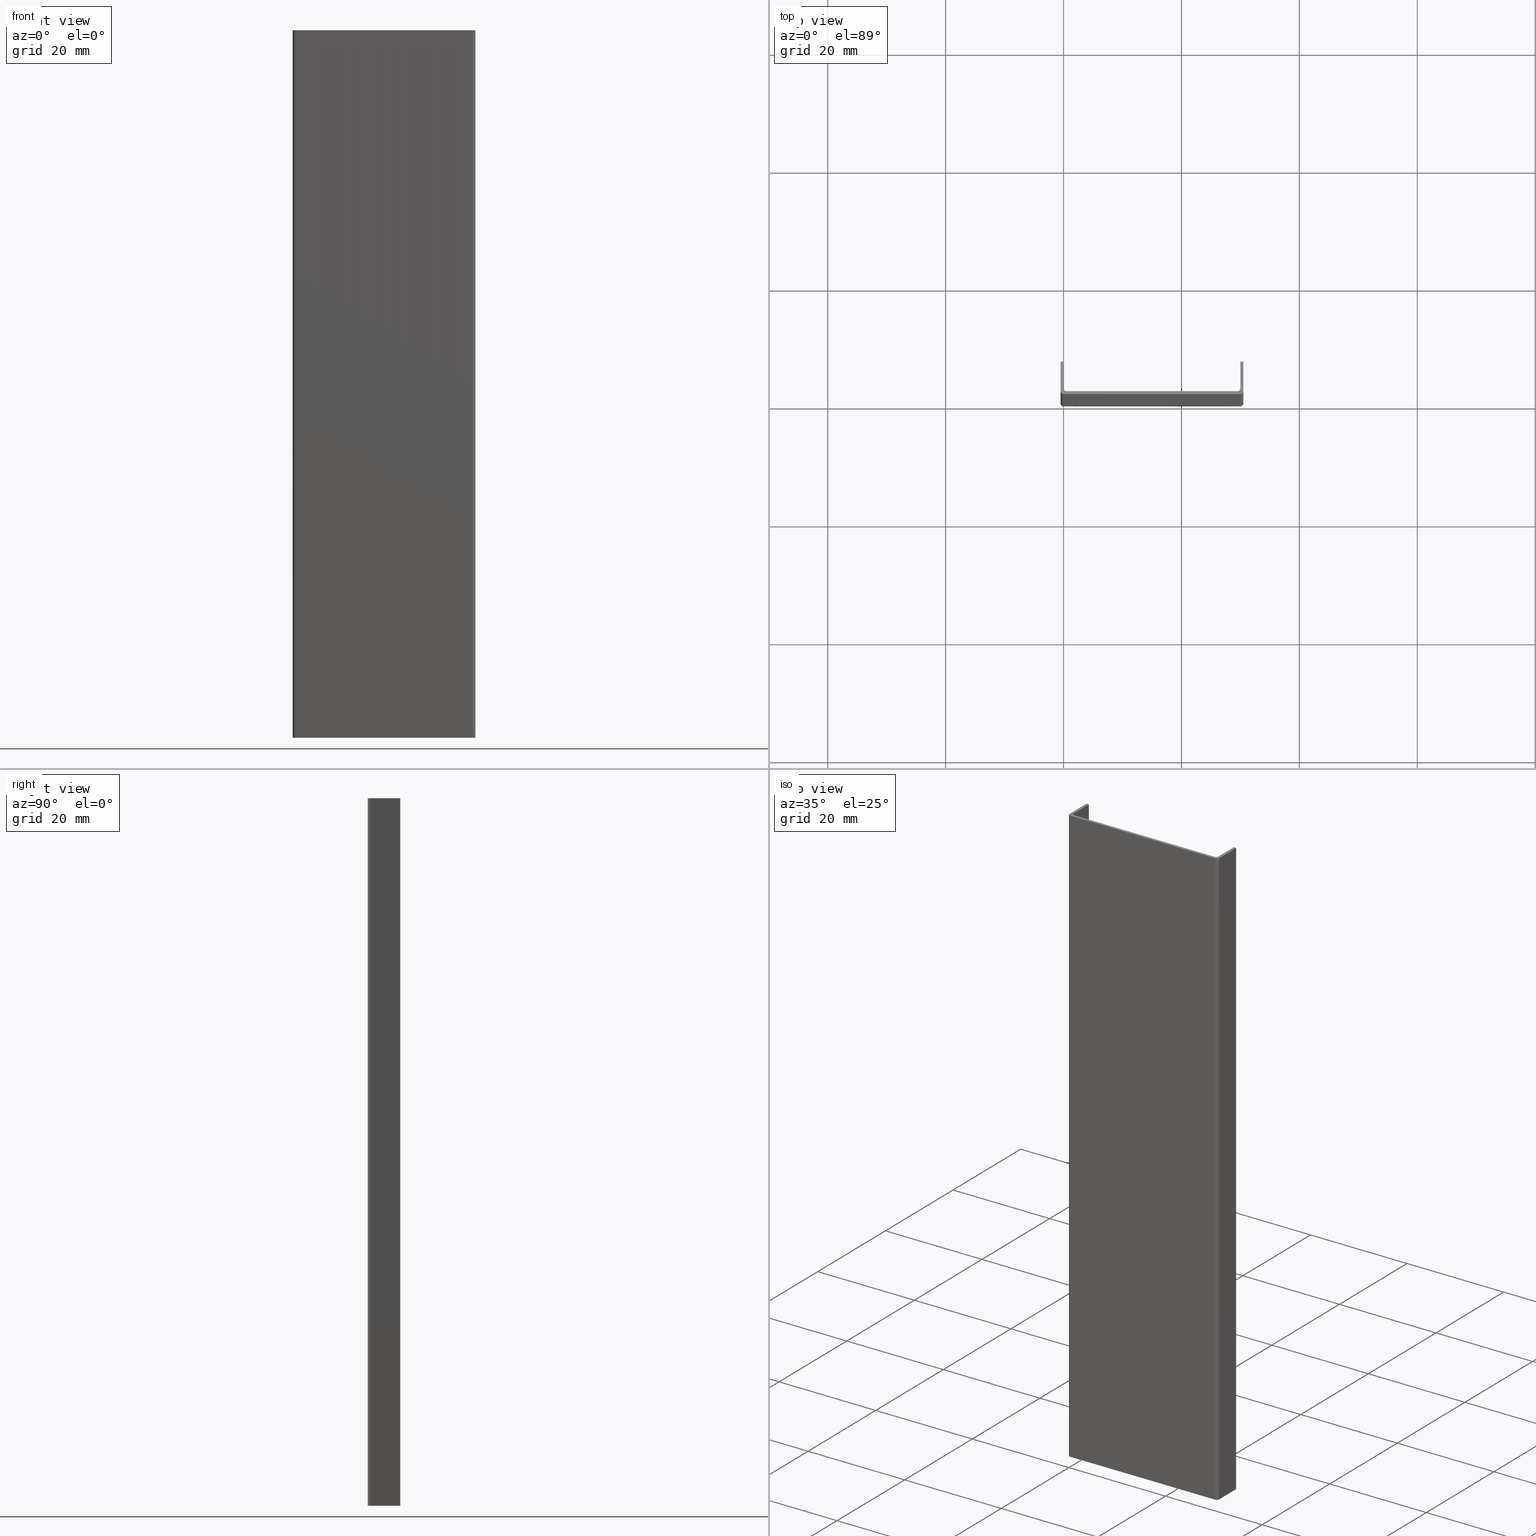
[diagram: canonical four-view strip — front | top / right | iso, engineering-drawing reading convention]
A machine part, canonical four-view strip (front | top / right | iso — engineering-drawing reading convention). The complete STEP part file that produces these views, byte-faithful:
ISO-10303-21;
HEADER;
FILE_DESCRIPTION (( 'STEP AP203' ),
    '1' );
FILE_NAME ('Seperat�r.STEP',
    '2020-05-12T05:39:24',
    ( '' ),
    ( '' ),
    'SwSTEP 2.0',
    'SolidWorks 2011',
    '' );
FILE_SCHEMA (( 'CONFIG_CONTROL_DESIGN' ));
ENDSEC;

DATA;
#1 = EDGE_CURVE ( 'NONE', #295, #270, #167, .T. ) ;
#2 = EDGE_CURVE ( 'NONE', #240, #239, #76, .T. ) ;
#3 = EDGE_CURVE ( 'NONE', #262, #278, #244, .T. ) ;
#4 = EDGE_CURVE ( 'NONE', #260, #238, #245, .T. ) ;
#5 = EDGE_CURVE ( 'NONE', #283, #241, #304, .T. ) ;
#6 = EDGE_CURVE ( 'NONE', #240, #259, #160, .T. ) ;
#7 = EDGE_CURVE ( 'NONE', #236, #281, #305, .T. ) ;
#8 = EDGE_CURVE ( 'NONE', #270, #259, #330, .T. ) ;
#9 = EDGE_CURVE ( 'NONE', #254, #260, #321, .T. ) ;
#10 = ADVANCED_FACE ( 'NONE', ( #336 ), #313, .F. ) ;
#11 = ADVANCED_FACE ( 'NONE', ( #300 ), #316, .F. ) ;
#12 = EDGE_CURVE ( 'NONE', #241, #264, #79, .T. ) ;
#13 = EDGE_CURVE ( 'NONE', #237, #262, #314, .T. ) ;
#14 = EDGE_CURVE ( 'NONE', #287, #254, #318, .T. ) ;
#15 = ADVANCED_FACE ( 'NONE', ( #297 ), #328, .F. ) ;
#16 = EDGE_CURVE ( 'NONE', #238, #291, #128, .T. ) ;
#17 = ADVANCED_FACE ( 'NONE', ( #301 ), #306, .F. ) ;
#18 = ADVANCED_FACE ( 'NONE', ( #372 ), #359, .F. ) ;
#19 = ADVANCED_FACE ( 'NONE', ( #358 ), #352, .F. ) ;
#20 = EDGE_CURVE ( 'NONE', #253, #283, #388, .T. ) ;
#21 = EDGE_CURVE ( 'NONE', #259, #272, #107, .T. ) ;
#22 = EDGE_CURVE ( 'NONE', #260, #262, #363, .T. ) ;
#23 = EDGE_CURVE ( 'NONE', #265, #287, #110, .T. ) ;
#24 = ADVANCED_FACE ( 'NONE', ( #370 ), #348, .F. ) ;
#25 = ADVANCED_FACE ( 'NONE', ( #357 ), #360, .F. ) ;
#26 = ADVANCED_FACE ( 'NONE', ( #349 ), #390, .T. ) ;
#27 = EDGE_CURVE ( 'NONE', #239, #272, #376, .T. ) ;
#28 = EDGE_CURVE ( 'NONE', #278, #282, #105, .T. ) ;
#29 = EDGE_CURVE ( 'NONE', #290, #241, #369, .T. ) ;
#30 = EDGE_CURVE ( 'NONE', #253, #290, #410, .T. ) ;
#31 = EDGE_CURVE ( 'NONE', #261, #243, #413, .T. ) ;
#32 = ADVANCED_FACE ( 'NONE', ( #391 ), #386, .T. ) ;
#33 = EDGE_CURVE ( 'NONE', #243, #269, #134, .T. ) ;
#34 = EDGE_CURVE ( 'NONE', #269, #263, #127, .T. ) ;
#35 = EDGE_CURVE ( 'NONE', #254, #237, #407, .T. ) ;
#36 = EDGE_CURVE ( 'NONE', #291, #282, #398, .T. ) ;
#37 = ADVANCED_FACE ( 'NONE', ( #406 ), #393, .F. ) ;
#38 = EDGE_CURVE ( 'NONE', #239, #261, #433, .T. ) ;
#39 = EDGE_CURVE ( 'NONE', #275, #264, #409, .T. ) ;
#40 = ADVANCED_FACE ( 'NONE', ( #438 ), #435, .T. ) ;
#41 = EDGE_CURVE ( 'NONE', #295, #240, #428, .T. ) ;
#42 = EDGE_CURVE ( 'NONE', #238, #278, #441, .T. ) ;
#43 = ADVANCED_FACE ( 'NONE', ( #426 ), #429, .F. ) ;
#44 = ADVANCED_FACE ( 'NONE', ( #457 ), #425, .F. ) ;
#45 = ADVANCED_FACE ( 'NONE', ( #451 ), #448, .T. ) ;
#46 = EDGE_CURVE ( 'NONE', #265, #269, #458, .T. ) ;
#47 = EDGE_CURVE ( 'NONE', #236, #295, #452, .T. ) ;
#48 = EDGE_CURVE ( 'NONE', #261, #265, #117, .T. ) ;
#49 = EDGE_CURVE ( 'NONE', #282, #283, #103, .T. ) ;
#50 = ADVANCED_FACE ( 'NONE', ( #466 ), #465, .F. ) ;
#51 = EDGE_CURVE ( 'NONE', #272, #243, #470, .T. ) ;
#52 = EDGE_CURVE ( 'NONE', #264, #281, #456, .T. ) ;
#53 = EDGE_CURVE ( 'NONE', #275, #236, #501, .T. ) ;
#54 = EDGE_CURVE ( 'NONE', #291, #253, #138, .T. ) ;
#55 = EDGE_CURVE ( 'NONE', #281, #270, #476, .T. ) ;
#56 = EDGE_CURVE ( 'NONE', #263, #237, #503, .T. ) ;
#57 = EDGE_CURVE ( 'NONE', #287, #263, #485, .T. ) ;
#58 = EDGE_CURVE ( 'NONE', #290, #275, #141, .T. ) ;
#59 = CC_DESIGN_PERSON_AND_ORGANIZATION_ASSIGNMENT ( #522, #524, ( #61 ) ) ;
#60 = PRODUCT_RELATED_PRODUCT_CATEGORY ( 'detail', '', ( #159 ) ) ;
#61 = PRODUCT_DEFINITION ( 'Bilinmeyen', '', #154, #572 ) ;
#62 = APPROVAL ( #562, 'BEL�RT�LMEM��' ) ;
#63 = APPROVAL ( #563, 'BEL�RT�LMEM��' ) ;
#64 = CC_DESIGN_PERSON_AND_ORGANIZATION_ASSIGNMENT ( #560, #564, ( #154 ) ) ;
#65 = CC_DESIGN_PERSON_AND_ORGANIZATION_ASSIGNMENT ( #554, #547, ( #153 ) ) ;
#66 = CC_DESIGN_DATE_AND_TIME_ASSIGNMENT ( #548, #550, ( #153 ) ) ;
#67 = CC_DESIGN_PERSON_AND_ORGANIZATION_ASSIGNMENT ( #566, #571, ( #154 ) ) ;
#68 = CC_DESIGN_DATE_AND_TIME_ASSIGNMENT ( #532, #535, ( #61 ) ) ;
#69 = CC_DESIGN_PERSON_AND_ORGANIZATION_ASSIGNMENT ( #514, #526, ( #159 ) ) ;
#70 = APPROVAL ( #523, 'BEL�RT�LMEM��' ) ;
#71 = CLOSED_SHELL ( 'NONE', ( #50, #40, #32, #24, #26, #19, #11, #43, #18, #25, #17, #37, #44, #15, #45, #10 ) ) ;
#72 = VECTOR ( 'NONE', #299, 1000.000000000000000 ) ;
#73 = AXIS2_PLACEMENT_3D ( 'NONE', #247, #326, #315 ) ;
#74 = VECTOR ( 'NONE', #309, 1000.000000000000000 ) ;
#75 = VECTOR ( 'NONE', #342, 1000.000000000000000 ) ;
#76 = CIRCLE ( 'NONE', #73, 0.5000000000000004400 ) ;
#77 = VECTOR ( 'NONE', #322, 1000.000000000000100 ) ;
#78 = VECTOR ( 'NONE', #324, 1000.000000000000100 ) ;
#79 = CIRCLE ( 'NONE', #84, 0.5000000000000038900 ) ;
#80 = VECTOR ( 'NONE', #310, 1000.000000000000000 ) ;
#81 = AXIS2_PLACEMENT_3D ( 'NONE', #317, #325, #334 ) ;
#82 = VECTOR ( 'NONE', #308, 1000.000000000000000 ) ;
#83 = AXIS2_PLACEMENT_3D ( 'NONE', #323, #338, #307 ) ;
#84 = AXIS2_PLACEMENT_3D ( 'NONE', #312, #331, #340 ) ;
#85 = VECTOR ( 'NONE', #327, 1000.000000000000000 ) ;
#86 = VECTOR ( 'NONE', #320, 1000.000000000000100 ) ;
#87 = VECTOR ( 'NONE', #285, 1000.000000000000000 ) ;
#88 = AXIS2_PLACEMENT_3D ( 'NONE', #508, #489, #477 ) ;
#89 = VECTOR ( 'NONE', #411, 1000.000000000000000 ) ;
#90 = VECTOR ( 'NONE', #415, 1000.000000000000000 ) ;
#91 = VECTOR ( 'NONE', #472, 1000.000000000000000 ) ;
#92 = AXIS2_PLACEMENT_3D ( 'NONE', #418, #419, #412 ) ;
#93 = AXIS2_PLACEMENT_3D ( 'NONE', #447, #450, #453 ) ;
#94 = VECTOR ( 'NONE', #380, 1000.000000000000000 ) ;
#95 = AXIS2_PLACEMENT_3D ( 'NONE', #387, #356, #345 ) ;
#96 =( GEOMETRIC_REPRESENTATION_CONTEXT ( 3 ) GLOBAL_UNCERTAINTY_ASSIGNED_CONTEXT ( ( #573 ) ) GLOBAL_UNIT_ASSIGNED_CONTEXT ( ( #542, #513, #534 ) ) REPRESENTATION_CONTEXT ( 'NONE', 'WORKASPACE' ) );
#97 = VECTOR ( 'NONE', #483, 1000.000000000000100 ) ;
#98 = AXIS2_PLACEMENT_3D ( 'NONE', #303, #335, #298 ) ;
#99 = AXIS2_PLACEMENT_3D ( 'NONE', #343, #371, #354 ) ;
#100 = AXIS2_PLACEMENT_3D ( 'NONE', #527, #515, #519 ) ;
#101 = ORGANIZATION ( 'BEL�RT�LMEM��', 'BEL�RT�LMEM��', '' ) ;
#102 = APPROVAL_PERSON_ORGANIZATION ( #530, #70, #518 ) ;
#103 = CIRCLE ( 'NONE', #123, 0.4999999999999789600 ) ;
#104 = VECTOR ( 'NONE', #424, 1000.000000000000000 ) ;
#105 = CIRCLE ( 'NONE', #135, 0.4999999999999789600 ) ;
#106 = VECTOR ( 'NONE', #414, 1000.000000000000100 ) ;
#107 = CIRCLE ( 'NONE', #99, 0.5000000000000004400 ) ;
#108 = AXIS2_PLACEMENT_3D ( 'NONE', #408, #416, #397 ) ;
#109 = AXIS2_PLACEMENT_3D ( 'NONE', #445, #454, #455 ) ;
#110 = CIRCLE ( 'NONE', #136, 0.5000000000000243100 ) ;
#111 = AXIS2_PLACEMENT_3D ( 'NONE', #332, #375, #351 ) ;
#112 = VECTOR ( 'NONE', #404, 1000.000000000000000 ) ;
#113 = AXIS2_PLACEMENT_3D ( 'NONE', #394, #436, #442 ) ;
#114 = VECTOR ( 'NONE', #439, 1000.000000000000000 ) ;
#115 = AXIS2_PLACEMENT_3D ( 'NONE', #431, #432, #446 ) ;
#116 = AXIS2_PLACEMENT_3D ( 'NONE', #329, #374, #379 ) ;
#117 = CIRCLE ( 'NONE', #121, 0.5000000000000243100 ) ;
#118 = VECTOR ( 'NONE', #459, 1000.000000000000000 ) ;
#119 = VECTOR ( 'NONE', #384, 1000.000000000000000 ) ;
#120 = VECTOR ( 'NONE', #402, 1000.000000000000000 ) ;
#121 = AXIS2_PLACEMENT_3D ( 'NONE', #460, #463, #464 ) ;
#122 = VECTOR ( 'NONE', #383, 1000.000000000000000 ) ;
#123 = AXIS2_PLACEMENT_3D ( 'NONE', #462, #468, #474 ) ;
#124 = VECTOR ( 'NONE', #500, 1000.000000000000100 ) ;
#125 = AXIS2_PLACEMENT_3D ( 'NONE', #353, #347, #389 ) ;
#126 = AXIS2_PLACEMENT_3D ( 'NONE', #362, #364, #365 ) ;
#127 = CIRCLE ( 'NONE', #92, 0.5000000000000243100 ) ;
#128 = CIRCLE ( 'NONE', #116, 0.4999999999999789600 ) ;
#129 = AXIS2_PLACEMENT_3D ( 'NONE', #505, #482, #486 ) ;
#130 = VECTOR ( 'NONE', #502, 1000.000000000000000 ) ;
#131 = AXIS2_PLACEMENT_3D ( 'NONE', #467, #473, #475 ) ;
#132 = AXIS2_PLACEMENT_3D ( 'NONE', #382, #344, #373 ) ;
#133 = AXIS2_PLACEMENT_3D ( 'NONE', #385, #368, #361 ) ;
#134 = CIRCLE ( 'NONE', #108, 0.5000000000000243100 ) ;
#135 = AXIS2_PLACEMENT_3D ( 'NONE', #346, #405, #396 ) ;
#136 = AXIS2_PLACEMENT_3D ( 'NONE', #367, #355, #350 ) ;
#137 = AXIS2_PLACEMENT_3D ( 'NONE', #440, #430, #427 ) ;
#138 = CIRCLE ( 'NONE', #129, 0.4999999999999789600 ) ;
#139 = VECTOR ( 'NONE', #437, 1000.000000000000000 ) ;
#140 = VECTOR ( 'NONE', #444, 1000.000000000000000 ) ;
#141 = CIRCLE ( 'NONE', #88, 0.5000000000000038900 ) ;
#142 = VECTOR ( 'NONE', #421, 1000.000000000000100 ) ;
#143 = VECTOR ( 'NONE', #492, 1000.000000000000100 ) ;
#144 = VECTOR ( 'NONE', #478, 1000.000000000000000 ) ;
#145 = AXIS2_PLACEMENT_3D ( 'NONE', #401, #417, #399 ) ;
#146 = LOCAL_TIME ( 8, 39, 24.00000000000000000, #557 ) ;
#147 = APPROVAL_PERSON_ORGANIZATION ( #565, #63, #567 ) ;
#148 = LOCAL_TIME ( 8, 39, 24.00000000000000000, #521 ) ;
#149 = CC_DESIGN_APPROVAL ( #63, ( #154 ) ) ;
#150 = CC_DESIGN_APPROVAL ( #62, ( #153 ) ) ;
#151 = LOCAL_TIME ( 8, 39, 24.00000000000000000, #570 ) ;
#152 = APPROVAL_PERSON_ORGANIZATION ( #561, #62, #552 ) ;
#153 = SECURITY_CLASSIFICATION ( '', '', #555 ) ;
#154 = PRODUCT_DEFINITION_FORMATION_WITH_SPECIFIED_SOURCE ( '     Herhangi', '', #159, .NOT_KNOWN. ) ;
#155 = LOCAL_TIME ( 8, 39, 24.00000000000000000, #551 ) ;
#156 = CC_DESIGN_APPROVAL ( #70, ( #61 ) ) ;
#157 = CC_DESIGN_SECURITY_CLASSIFICATION ( #153, ( #154 ) ) ;
#158 = LOCAL_TIME ( 8, 39, 24.00000000000000000, #525 ) ;
#159 = PRODUCT ( 'Seperat�r', 'Seperat�r', '', ( #544 ) ) ;
#160 = LINE ( 'NONE', #341, #74 ) ;
#161 = EDGE_LOOP ( 'NONE', ( #179, #202, #192, #187 ) ) ;
#162 = EDGE_LOOP ( 'NONE', ( #210, #205, #219, #190 ) ) ;
#163 = EDGE_LOOP ( 'NONE', ( #207, #248, #266, #249 ) ) ;
#164 = EDGE_LOOP ( 'NONE', ( #230, #224, #280, #235 ) ) ;
#165 = EDGE_LOOP ( 'NONE', ( #186, #274, #289, #276 ) ) ;
#166 = EDGE_LOOP ( 'NONE', ( #268, #215, #221, #216 ) ) ;
#167 = LINE ( 'NONE', #242, #87 ) ;
#168 = EDGE_LOOP ( 'NONE', ( #258, #209, #246, #286 ) ) ;
#169 = EDGE_LOOP ( 'NONE', ( #212, #199, #229, #183 ) ) ;
#170 = EDGE_LOOP ( 'NONE', ( #279, #233, #206, #225 ) ) ;
#171 = EDGE_LOOP ( 'NONE', ( #222, #201, #284, #227 ) ) ;
#172 = EDGE_LOOP ( 'NONE', ( #181, #218, #191, #217 ) ) ;
#173 = EDGE_LOOP ( 'NONE', ( #231, #193, #188, #213 ) ) ;
#174 = EDGE_LOOP ( 'NONE', ( #200, #189, #228, #208 ) ) ;
#175 = EDGE_LOOP ( 'NONE', ( #252, #211, #251, #232, #257, #182, #267, #180, #271, #277, #198, #184, #220, #214 ) ) ;
#176 = EDGE_LOOP ( 'NONE', ( #273, #294, #185, #256, #288, #204, #293, #226, #234, #250, #195, #197, #255, #223 ) ) ;
#177 = EDGE_LOOP ( 'NONE', ( #196, #178, #194, #203 ) ) ;
#178 = ORIENTED_EDGE ( 'NONE', *, *, #46, .T. ) ;
#179 = ORIENTED_EDGE ( 'NONE', *, *, #5, .T. ) ;
#180 = ORIENTED_EDGE ( 'NONE', *, *, #2, .T. ) ;
#181 = ORIENTED_EDGE ( 'NONE', *, *, #12, .T. ) ;
#182 = ORIENTED_EDGE ( 'NONE', *, *, #47, .T. ) ;
#183 = ORIENTED_EDGE ( 'NONE', *, *, #20, .F. ) ;
#184 = ORIENTED_EDGE ( 'NONE', *, *, #14, .T. ) ;
#185 = ORIENTED_EDGE ( 'NONE', *, *, #13, .F. ) ;
#186 = ORIENTED_EDGE ( 'NONE', *, *, #51, .T. ) ;
#187 = ORIENTED_EDGE ( 'NONE', *, *, #20, .T. ) ;
#188 = ORIENTED_EDGE ( 'NONE', *, *, #47, .F. ) ;
#189 = ORIENTED_EDGE ( 'NONE', *, *, #7, .F. ) ;
#190 = ORIENTED_EDGE ( 'NONE', *, *, #28, .T. ) ;
#191 = ORIENTED_EDGE ( 'NONE', *, *, #58, .F. ) ;
#192 = ORIENTED_EDGE ( 'NONE', *, *, #30, .F. ) ;
#193 = ORIENTED_EDGE ( 'NONE', *, *, #1, .F. ) ;
#194 = ORIENTED_EDGE ( 'NONE', *, *, #34, .T. ) ;
#195 = ORIENTED_EDGE ( 'NONE', *, *, #52, .F. ) ;
#196 = ORIENTED_EDGE ( 'NONE', *, *, #23, .F. ) ;
#197 = ORIENTED_EDGE ( 'NONE', *, *, #12, .F. ) ;
#198 = ORIENTED_EDGE ( 'NONE', *, *, #23, .T. ) ;
#199 = ORIENTED_EDGE ( 'NONE', *, *, #36, .T. ) ;
#200 = ORIENTED_EDGE ( 'NONE', *, *, #52, .T. ) ;
#201 = ORIENTED_EDGE ( 'NONE', *, *, #22, .F. ) ;
#202 = ORIENTED_EDGE ( 'NONE', *, *, #29, .F. ) ;
#203 = ORIENTED_EDGE ( 'NONE', *, *, #57, .F. ) ;
#204 = ORIENTED_EDGE ( 'NONE', *, *, #33, .F. ) ;
#205 = ORIENTED_EDGE ( 'NONE', *, *, #16, .F. ) ;
#206 = ORIENTED_EDGE ( 'NONE', *, *, #4, .F. ) ;
#207 = ORIENTED_EDGE ( 'NONE', *, *, #21, .T. ) ;
#208 = ORIENTED_EDGE ( 'NONE', *, *, #39, .T. ) ;
#209 = ORIENTED_EDGE ( 'NONE', *, *, #6, .F. ) ;
#210 = ORIENTED_EDGE ( 'NONE', *, *, #36, .F. ) ;
#211 = ORIENTED_EDGE ( 'NONE', *, *, #54, .T. ) ;
#212 = ORIENTED_EDGE ( 'NONE', *, *, #54, .F. ) ;
#213 = ORIENTED_EDGE ( 'NONE', *, *, #7, .T. ) ;
#214 = ORIENTED_EDGE ( 'NONE', *, *, #4, .T. ) ;
#215 = ORIENTED_EDGE ( 'NONE', *, *, #48, .F. ) ;
#216 = ORIENTED_EDGE ( 'NONE', *, *, #33, .T. ) ;
#217 = ORIENTED_EDGE ( 'NONE', *, *, #29, .T. ) ;
#218 = ORIENTED_EDGE ( 'NONE', *, *, #39, .F. ) ;
#219 = ORIENTED_EDGE ( 'NONE', *, *, #42, .T. ) ;
#220 = ORIENTED_EDGE ( 'NONE', *, *, #9, .T. ) ;
#221 = ORIENTED_EDGE ( 'NONE', *, *, #31, .T. ) ;
#222 = ORIENTED_EDGE ( 'NONE', *, *, #13, .T. ) ;
#223 = ORIENTED_EDGE ( 'NONE', *, *, #49, .F. ) ;
#224 = ORIENTED_EDGE ( 'NONE', *, *, #35, .F. ) ;
#225 = ORIENTED_EDGE ( 'NONE', *, *, #22, .T. ) ;
#226 = ORIENTED_EDGE ( 'NONE', *, *, #21, .F. ) ;
#227 = ORIENTED_EDGE ( 'NONE', *, *, #35, .T. ) ;
#228 = ORIENTED_EDGE ( 'NONE', *, *, #53, .F. ) ;
#229 = ORIENTED_EDGE ( 'NONE', *, *, #49, .T. ) ;
#230 = ORIENTED_EDGE ( 'NONE', *, *, #56, .T. ) ;
#231 = ORIENTED_EDGE ( 'NONE', *, *, #55, .T. ) ;
#232 = ORIENTED_EDGE ( 'NONE', *, *, #58, .T. ) ;
#233 = ORIENTED_EDGE ( 'NONE', *, *, #42, .F. ) ;
#234 = ORIENTED_EDGE ( 'NONE', *, *, #8, .F. ) ;
#235 = ORIENTED_EDGE ( 'NONE', *, *, #57, .T. ) ;
#236 = VERTEX_POINT ( 'NONE', #490 ) ;
#237 = VERTEX_POINT ( 'NONE', #493 ) ;
#238 = VERTEX_POINT ( 'NONE', #479 ) ;
#239 = VERTEX_POINT ( 'NONE', #480 ) ;
#240 = VERTEX_POINT ( 'NONE', #506 ) ;
#241 = VERTEX_POINT ( 'NONE', #487 ) ;
#242 = CARTESIAN_POINT ( 'NONE',  ( 30.00046662709908700, 5.919836594176119100, 120.0000000000000000 ) ) ;
#243 = VERTEX_POINT ( 'NONE', #494 ) ;
#244 = LINE ( 'NONE', #292, #80 ) ;
#245 = LINE ( 'NONE', #296, #82 ) ;
#246 = ORIENTED_EDGE ( 'NONE', *, *, #41, .F. ) ;
#247 = CARTESIAN_POINT ( 'NONE',  ( 29.50008460101221200, 1.409878963779872500, 120.0000000000000000 ) ) ;
#248 = ORIENTED_EDGE ( 'NONE', *, *, #27, .F. ) ;
#249 = ORIENTED_EDGE ( 'NONE', *, *, #6, .T. ) ;
#250 = ORIENTED_EDGE ( 'NONE', *, *, #55, .F. ) ;
#251 = ORIENTED_EDGE ( 'NONE', *, *, #30, .T. ) ;
#252 = ORIENTED_EDGE ( 'NONE', *, *, #16, .T. ) ;
#253 = VERTEX_POINT ( 'NONE', #481 ) ;
#254 = VERTEX_POINT ( 'NONE', #496 ) ;
#255 = ORIENTED_EDGE ( 'NONE', *, *, #5, .F. ) ;
#256 = ORIENTED_EDGE ( 'NONE', *, *, #56, .F. ) ;
#257 = ORIENTED_EDGE ( 'NONE', *, *, #53, .T. ) ;
#258 = ORIENTED_EDGE ( 'NONE', *, *, #8, .T. ) ;
#259 = VERTEX_POINT ( 'NONE', #497 ) ;
#260 = VERTEX_POINT ( 'NONE', #498 ) ;
#261 = VERTEX_POINT ( 'NONE', #499 ) ;
#262 = VERTEX_POINT ( 'NONE', #507 ) ;
#263 = VERTEX_POINT ( 'NONE', #538 ) ;
#264 = VERTEX_POINT ( 'NONE', #488 ) ;
#265 = VERTEX_POINT ( 'NONE', #533 ) ;
#266 = ORIENTED_EDGE ( 'NONE', *, *, #2, .F. ) ;
#267 = ORIENTED_EDGE ( 'NONE', *, *, #41, .T. ) ;
#268 = ORIENTED_EDGE ( 'NONE', *, *, #46, .F. ) ;
#269 = VERTEX_POINT ( 'NONE', #545 ) ;
#270 = VERTEX_POINT ( 'NONE', #537 ) ;
#271 = ORIENTED_EDGE ( 'NONE', *, *, #38, .T. ) ;
#272 = VERTEX_POINT ( 'NONE', #540 ) ;
#273 = ORIENTED_EDGE ( 'NONE', *, *, #28, .F. ) ;
#274 = ORIENTED_EDGE ( 'NONE', *, *, #31, .F. ) ;
#275 = VERTEX_POINT ( 'NONE', #546 ) ;
#276 = ORIENTED_EDGE ( 'NONE', *, *, #27, .T. ) ;
#277 = ORIENTED_EDGE ( 'NONE', *, *, #48, .T. ) ;
#278 = VERTEX_POINT ( 'NONE', #539 ) ;
#279 = ORIENTED_EDGE ( 'NONE', *, *, #3, .T. ) ;
#280 = ORIENTED_EDGE ( 'NONE', *, *, #14, .F. ) ;
#281 = VERTEX_POINT ( 'NONE', #517 ) ;
#282 = VERTEX_POINT ( 'NONE', #509 ) ;
#283 = VERTEX_POINT ( 'NONE', #543 ) ;
#284 = ORIENTED_EDGE ( 'NONE', *, *, #9, .F. ) ;
#285 = DIRECTION ( 'NONE',  ( -0.0000000000000000000, -0.0000000000000000000, -1.000000000000000000 ) ) ;
#286 = ORIENTED_EDGE ( 'NONE', *, *, #1, .T. ) ;
#287 = VERTEX_POINT ( 'NONE', #495 ) ;
#288 = ORIENTED_EDGE ( 'NONE', *, *, #34, .F. ) ;
#289 = ORIENTED_EDGE ( 'NONE', *, *, #38, .F. ) ;
#290 = VERTEX_POINT ( 'NONE', #510 ) ;
#291 = VERTEX_POINT ( 'NONE', #511 ) ;
#292 = CARTESIAN_POINT ( 'NONE',  ( -0.4999576447826075100, 5.922377799591049400, 0.0000000000000000000 ) ) ;
#293 = ORIENTED_EDGE ( 'NONE', *, *, #51, .F. ) ;
#294 = ORIENTED_EDGE ( 'NONE', *, *, #3, .F. ) ;
#295 = VERTEX_POINT ( 'NONE', #541 ) ;
#296 = CARTESIAN_POINT ( 'NONE',  ( -0.4999576447826075100, 5.922377799591049400, 120.0000000000000000 ) ) ;
#297 = FACE_OUTER_BOUND ( 'NONE', #170, .T. ) ;
#298 = DIRECTION ( 'NONE',  ( -0.0000000000000000000, 0.0000000000000000000, -1.000000000000000000 ) ) ;
#299 = DIRECTION ( 'NONE',  ( -1.000000000000000000, 0.0000000000000000000, 0.0000000000000000000 ) ) ;
#300 = FACE_OUTER_BOUND ( 'NONE', #173, .T. ) ;
#301 = FACE_OUTER_BOUND ( 'NONE', #166, .T. ) ;
#302 = CARTESIAN_POINT ( 'NONE',  ( 30.50046662530530400, 5.919794240752521500, 120.0000000000000000 ) ) ;
#303 = CARTESIAN_POINT ( 'NONE',  ( -0.4999576447826075100, 5.922377799591049400, 120.0000000000000000 ) ) ;
#304 = LINE ( 'NONE', #339, #77 ) ;
#305 = LINE ( 'NONE', #302, #75 ) ;
#306 = CYLINDRICAL_SURFACE ( 'NONE', #111, 0.5000000000000243100 ) ;
#307 = DIRECTION ( 'NONE',  ( 1.000000000000000000, 0.0000000000000000000, -0.0000000000000000000 ) ) ;
#308 = DIRECTION ( 'NONE',  ( 0.0000000000000000000, -1.000000000000000000, 0.0000000000000000000 ) ) ;
#309 = DIRECTION ( 'NONE',  ( -0.0000000000000000000, -0.0000000000000000000, -1.000000000000000000 ) ) ;
#310 = DIRECTION ( 'NONE',  ( 0.0000000000000000000, -1.000000000000000000, 0.0000000000000000000 ) ) ;
#311 = CARTESIAN_POINT ( 'NONE',  ( 30.00046662709908700, 5.919836594176119100, 0.0000000000000000000 ) ) ;
#312 = CARTESIAN_POINT ( 'NONE',  ( 30.00004224579479500, 0.9098366121500830500, 0.0000000000000000000 ) ) ;
#313 = PLANE ( 'NONE',  #83 ) ;
#314 = LINE ( 'NONE', #319, #85 ) ;
#315 = DIRECTION ( 'NONE',  ( 1.000000000000000000, 0.0000000000000000000, 0.0000000000000000000 ) ) ;
#316 = PLANE ( 'NONE',  #81 ) ;
#317 = CARTESIAN_POINT ( 'NONE',  ( 30.50046662530530400, 5.919794240752521500, 120.0000000000000000 ) ) ;
#318 = LINE ( 'NONE', #337, #86 ) ;
#319 = CARTESIAN_POINT ( 'NONE',  ( 0.0004667347278657722700, 5.922377799591049400, 0.0000000000000000000 ) ) ;
#320 = DIRECTION ( 'NONE',  ( 8.470684716671706500E-005, 0.9999999964123750300, 0.0000000000000000000 ) ) ;
#321 = LINE ( 'NONE', #333, #72 ) ;
#322 = DIRECTION ( 'NONE',  ( 0.9999999964123750300, -8.470684716574720600E-005, 0.0000000000000000000 ) ) ;
#323 = CARTESIAN_POINT ( 'NONE',  ( 4.235342358646860100E-005, 0.9123778175650267800, 0.0000000000000000000 ) ) ;
#324 = DIRECTION ( 'NONE',  ( -8.470684716139887800E-005, -0.9999999964123750300, 0.0000000000000000000 ) ) ;
#325 = DIRECTION ( 'NONE',  ( -8.470684719624264200E-005, -0.9999999964123750300, 0.0000000000000000000 ) ) ;
#326 = DIRECTION ( 'NONE',  ( -0.0000000000000000000, -0.0000000000000000000, -1.000000000000000000 ) ) ;
#327 = DIRECTION ( 'NONE',  ( -1.000000000000000000, 0.0000000000000000000, 0.0000000000000000000 ) ) ;
#328 = PLANE ( 'NONE',  #98 ) ;
#329 = CARTESIAN_POINT ( 'NONE',  ( 4.235342358646860100E-005, 0.9123778175650267800, 120.0000000000000000 ) ) ;
#330 = LINE ( 'NONE', #311, #78 ) ;
#331 = DIRECTION ( 'NONE',  ( 0.0000000000000000000, 0.0000000000000000000, 1.000000000000000000 ) ) ;
#332 = CARTESIAN_POINT ( 'NONE',  ( 0.5000847050533389100, 1.412335462347681600, 120.0000000000000000 ) ) ;
#333 = CARTESIAN_POINT ( 'NONE',  ( 0.0004667347278657722700, 5.922377799591049400, 120.0000000000000000 ) ) ;
#334 = DIRECTION ( 'NONE',  ( 0.9999999964123750300, -8.470684719624264200E-005, 0.0000000000000000000 ) ) ;
#335 = DIRECTION ( 'NONE',  ( 1.000000000000000000, 0.0000000000000000000, -0.0000000000000000000 ) ) ;
#336 = FACE_OUTER_BOUND ( 'NONE', #176, .T. ) ;
#337 = CARTESIAN_POINT ( 'NONE',  ( 8.470684714388058300E-005, 1.412377815771265000, 120.0000000000000000 ) ) ;
#338 = DIRECTION ( 'NONE',  ( 0.0000000000000000000, 0.0000000000000000000, 1.000000000000000000 ) ) ;
#339 = CARTESIAN_POINT ( 'NONE',  ( 3.689675518239732300E-015, 0.4123778193588880600, 0.0000000000000000000 ) ) ;
#340 = DIRECTION ( 'NONE',  ( 1.000000000000000000, 0.0000000000000000000, 0.0000000000000000000 ) ) ;
#341 = CARTESIAN_POINT ( 'NONE',  ( 30.00008459921840000, 1.409836610356288500, 120.0000000000000000 ) ) ;
#342 = DIRECTION ( 'NONE',  ( -0.0000000000000000000, -0.0000000000000000000, -1.000000000000000000 ) ) ;
#343 = CARTESIAN_POINT ( 'NONE',  ( 29.50008460101221200, 1.409878963779872500, 0.0000000000000000000 ) ) ;
#344 = DIRECTION ( 'NONE',  ( 8.470684716574720600E-005, 0.9999999964123750300, -0.0000000000000000000 ) ) ;
#345 = DIRECTION ( 'NONE',  ( -1.000000000000000000, 0.0000000000000000000, 0.0000000000000000000 ) ) ;
#346 = CARTESIAN_POINT ( 'NONE',  ( 4.235342358646860100E-005, 0.9123778175650267800, 0.0000000000000000000 ) ) ;
#347 = DIRECTION ( 'NONE',  ( -0.9999999964123750300, 8.470684716418423400E-005, 0.0000000000000000000 ) ) ;
#348 = PLANE ( 'NONE',  #132 ) ;
#349 = FACE_OUTER_BOUND ( 'NONE', #172, .T. ) ;
#350 = DIRECTION ( 'NONE',  ( 1.000000000000000000, 0.0000000000000000000, 0.0000000000000000000 ) ) ;
#351 = DIRECTION ( 'NONE',  ( -1.000000000000000000, 0.0000000000000000000, 0.0000000000000000000 ) ) ;
#352 = PLANE ( 'NONE',  #125 ) ;
#353 = CARTESIAN_POINT ( 'NONE',  ( 30.50004224400101200, 0.9097942587265009900, 120.0000000000000000 ) ) ;
#354 = DIRECTION ( 'NONE',  ( 1.000000000000000000, 0.0000000000000000000, 0.0000000000000000000 ) ) ;
#355 = DIRECTION ( 'NONE',  ( -0.0000000000000000000, -0.0000000000000000000, -1.000000000000000000 ) ) ;
#356 = DIRECTION ( 'NONE',  ( -0.0000000000000000000, -0.0000000000000000000, -1.000000000000000000 ) ) ;
#357 = FACE_OUTER_BOUND ( 'NONE', #165, .T. ) ;
#358 = FACE_OUTER_BOUND ( 'NONE', #174, .T. ) ;
#359 = CYLINDRICAL_SURFACE ( 'NONE', #95, 0.5000000000000004400 ) ;
#360 = PLANE ( 'NONE',  #133 ) ;
#361 = DIRECTION ( 'NONE',  ( 0.9999999964123750300, -8.470684716469725100E-005, 0.0000000000000000000 ) ) ;
#362 = CARTESIAN_POINT ( 'NONE',  ( 30.00004224579479500, 0.9098366121500830500, 120.0000000000000000 ) ) ;
#363 = LINE ( 'NONE', #381, #119 ) ;
#364 = DIRECTION ( 'NONE',  ( -0.0000000000000000000, -0.0000000000000000000, -1.000000000000000000 ) ) ;
#365 = DIRECTION ( 'NONE',  ( -1.000000000000000000, 0.0000000000000000000, 0.0000000000000000000 ) ) ;
#366 = CARTESIAN_POINT ( 'NONE',  ( 3.689675518239732300E-015, 0.4123778193588880600, 120.0000000000000000 ) ) ;
#367 = CARTESIAN_POINT ( 'NONE',  ( 0.5000847050533389100, 1.412335462347681600, 120.0000000000000000 ) ) ;
#368 = DIRECTION ( 'NONE',  ( -8.470684716469725100E-005, -0.9999999964123750300, 0.0000000000000000000 ) ) ;
#369 = LINE ( 'NONE', #378, #89 ) ;
#370 = FACE_OUTER_BOUND ( 'NONE', #161, .T. ) ;
#371 = DIRECTION ( 'NONE',  ( -0.0000000000000000000, -0.0000000000000000000, -1.000000000000000000 ) ) ;
#372 = FACE_OUTER_BOUND ( 'NONE', #163, .T. ) ;
#373 = DIRECTION ( 'NONE',  ( -0.9999999964123750300, 8.470684716574720600E-005, 0.0000000000000000000 ) ) ;
#374 = DIRECTION ( 'NONE',  ( 0.0000000000000000000, 0.0000000000000000000, 1.000000000000000000 ) ) ;
#375 = DIRECTION ( 'NONE',  ( -0.0000000000000000000, -0.0000000000000000000, -1.000000000000000000 ) ) ;
#376 = LINE ( 'NONE', #377, #94 ) ;
#377 = CARTESIAN_POINT ( 'NONE',  ( 29.50004224758863100, 0.9098789655736769800, 120.0000000000000000 ) ) ;
#378 = CARTESIAN_POINT ( 'NONE',  ( 29.99999989237122800, 0.4098366139438910900, 120.0000000000000000 ) ) ;
#379 = DIRECTION ( 'NONE',  ( 1.000000000000000000, 0.0000000000000000000, 0.0000000000000000000 ) ) ;
#380 = DIRECTION ( 'NONE',  ( -0.0000000000000000000, -0.0000000000000000000, -1.000000000000000000 ) ) ;
#381 = CARTESIAN_POINT ( 'NONE',  ( -0.4999576447826075100, 5.922377799591049400, 120.0000000000000000 ) ) ;
#382 = CARTESIAN_POINT ( 'NONE',  ( 3.689675518239732300E-015, 0.4123778193588880600, 120.0000000000000000 ) ) ;
#383 = DIRECTION ( 'NONE',  ( -0.0000000000000000000, -0.0000000000000000000, -1.000000000000000000 ) ) ;
#384 = DIRECTION ( 'NONE',  ( -0.0000000000000000000, -0.0000000000000000000, -1.000000000000000000 ) ) ;
#385 = CARTESIAN_POINT ( 'NONE',  ( 29.50004224758863100, 0.9098789655736769800, 120.0000000000000000 ) ) ;
#386 = CYLINDRICAL_SURFACE ( 'NONE', #145, 0.4999999999999787400 ) ;
#387 = CARTESIAN_POINT ( 'NONE',  ( 29.50008460101221200, 1.409878963779872500, 120.0000000000000000 ) ) ;
#388 = LINE ( 'NONE', #366, #122 ) ;
#389 = DIRECTION ( 'NONE',  ( -8.470684716418423400E-005, -0.9999999964123750300, 0.0000000000000000000 ) ) ;
#390 = CYLINDRICAL_SURFACE ( 'NONE', #126, 0.5000000000000038900 ) ;
#391 = FACE_OUTER_BOUND ( 'NONE', #162, .T. ) ;
#392 = CARTESIAN_POINT ( 'NONE',  ( 0.0004667347278657722700, 5.922377799591049400, 120.0000000000000000 ) ) ;
#393 = PLANE ( 'NONE',  #113 ) ;
#394 = CARTESIAN_POINT ( 'NONE',  ( 8.470684714388058300E-005, 1.412377815771265000, 120.0000000000000000 ) ) ;
#395 = CARTESIAN_POINT ( 'NONE',  ( 3.689675518239732300E-015, 0.4123778193588880600, 120.0000000000000000 ) ) ;
#396 = DIRECTION ( 'NONE',  ( 1.000000000000000000, 0.0000000000000000000, 0.0000000000000000000 ) ) ;
#397 = DIRECTION ( 'NONE',  ( 1.000000000000000000, 0.0000000000000000000, 0.0000000000000000000 ) ) ;
#398 = LINE ( 'NONE', #403, #112 ) ;
#399 = DIRECTION ( 'NONE',  ( -1.000000000000000000, 0.0000000000000000000, 0.0000000000000000000 ) ) ;
#400 = CARTESIAN_POINT ( 'NONE',  ( 0.5000423516297531900, 0.9123354641414698200, 120.0000000000000000 ) ) ;
#401 = CARTESIAN_POINT ( 'NONE',  ( 4.235342358646860100E-005, 0.9123778175650267800, 120.0000000000000000 ) ) ;
#402 = DIRECTION ( 'NONE',  ( -0.0000000000000000000, -0.0000000000000000000, -1.000000000000000000 ) ) ;
#403 = CARTESIAN_POINT ( 'NONE',  ( -0.4999576465763923600, 0.9123778175650267800, 120.0000000000000000 ) ) ;
#404 = DIRECTION ( 'NONE',  ( -0.0000000000000000000, -0.0000000000000000000, -1.000000000000000000 ) ) ;
#405 = DIRECTION ( 'NONE',  ( 0.0000000000000000000, 0.0000000000000000000, 1.000000000000000000 ) ) ;
#406 = FACE_OUTER_BOUND ( 'NONE', #164, .T. ) ;
#407 = LINE ( 'NONE', #392, #120 ) ;
#408 = CARTESIAN_POINT ( 'NONE',  ( 0.5000847050533389100, 1.412335462347681600, 0.0000000000000000000 ) ) ;
#409 = LINE ( 'NONE', #423, #114 ) ;
#410 = LINE ( 'NONE', #395, #106 ) ;
#411 = DIRECTION ( 'NONE',  ( -0.0000000000000000000, -0.0000000000000000000, -1.000000000000000000 ) ) ;
#412 = DIRECTION ( 'NONE',  ( 1.000000000000000000, 0.0000000000000000000, 0.0000000000000000000 ) ) ;
#413 = LINE ( 'NONE', #400, #90 ) ;
#414 = DIRECTION ( 'NONE',  ( 0.9999999964123750300, -8.470684716574720600E-005, 0.0000000000000000000 ) ) ;
#415 = DIRECTION ( 'NONE',  ( -0.0000000000000000000, -0.0000000000000000000, -1.000000000000000000 ) ) ;
#416 = DIRECTION ( 'NONE',  ( -0.0000000000000000000, -0.0000000000000000000, -1.000000000000000000 ) ) ;
#417 = DIRECTION ( 'NONE',  ( -0.0000000000000000000, -0.0000000000000000000, -1.000000000000000000 ) ) ;
#418 = CARTESIAN_POINT ( 'NONE',  ( 0.5000847050533389100, 1.412335462347681600, 0.0000000000000000000 ) ) ;
#419 = DIRECTION ( 'NONE',  ( -0.0000000000000000000, -0.0000000000000000000, -1.000000000000000000 ) ) ;
#420 = CARTESIAN_POINT ( 'NONE',  ( 30.00046662709908700, 5.919836594176119100, 120.0000000000000000 ) ) ;
#421 = DIRECTION ( 'NONE',  ( -8.470684716139887800E-005, -0.9999999964123750300, 0.0000000000000000000 ) ) ;
#422 = CARTESIAN_POINT ( 'NONE',  ( -0.4999576447826075100, 0.9124201709886099500, 120.0000000000000000 ) ) ;
#423 = CARTESIAN_POINT ( 'NONE',  ( 30.50004224400101200, 0.9097942587265009900, 120.0000000000000000 ) ) ;
#424 = DIRECTION ( 'NONE',  ( -0.0000000000000000000, -0.0000000000000000000, -1.000000000000000000 ) ) ;
#425 = PLANE ( 'NONE',  #93 ) ;
#426 = FACE_OUTER_BOUND ( 'NONE', #168, .T. ) ;
#427 = DIRECTION ( 'NONE',  ( -1.000000000000000000, 0.0000000000000000000, 0.0000000000000000000 ) ) ;
#428 = LINE ( 'NONE', #420, #142 ) ;
#429 = PLANE ( 'NONE',  #115 ) ;
#430 = DIRECTION ( 'NONE',  ( -0.0000000000000000000, -0.0000000000000000000, -1.000000000000000000 ) ) ;
#431 = CARTESIAN_POINT ( 'NONE',  ( 30.00046662709908700, 5.919836594176119100, 120.0000000000000000 ) ) ;
#432 = DIRECTION ( 'NONE',  ( 0.9999999964123750300, -8.470684716139887800E-005, 0.0000000000000000000 ) ) ;
#433 = LINE ( 'NONE', #434, #139 ) ;
#434 = CARTESIAN_POINT ( 'NONE',  ( 29.50004224758863100, 0.9098789655736769800, 120.0000000000000000 ) ) ;
#435 = CYLINDRICAL_SURFACE ( 'NONE', #137, 0.4999999999999787400 ) ;
#436 = DIRECTION ( 'NONE',  ( -0.9999999964123750300, 8.470684716671706500E-005, 0.0000000000000000000 ) ) ;
#437 = DIRECTION ( 'NONE',  ( -0.9999999964123750300, 8.470684716469725100E-005, 0.0000000000000000000 ) ) ;
#438 = FACE_OUTER_BOUND ( 'NONE', #169, .T. ) ;
#439 = DIRECTION ( 'NONE',  ( -0.0000000000000000000, -0.0000000000000000000, -1.000000000000000000 ) ) ;
#440 = CARTESIAN_POINT ( 'NONE',  ( 4.235342358646860100E-005, 0.9123778175650267800, 120.0000000000000000 ) ) ;
#441 = LINE ( 'NONE', #422, #104 ) ;
#442 = DIRECTION ( 'NONE',  ( -8.470684716671706500E-005, -0.9999999964123750300, 0.0000000000000000000 ) ) ;
#443 = CARTESIAN_POINT ( 'NONE',  ( 8.470505331458107200E-005, 1.412335462347681600, 120.0000000000000000 ) ) ;
#444 = DIRECTION ( 'NONE',  ( -0.0000000000000000000, -0.0000000000000000000, -1.000000000000000000 ) ) ;
#445 = CARTESIAN_POINT ( 'NONE',  ( 4.235342358646860100E-005, 0.9123778175650267800, 120.0000000000000000 ) ) ;
#446 = DIRECTION ( 'NONE',  ( 8.470684716139887800E-005, 0.9999999964123750300, 0.0000000000000000000 ) ) ;
#447 = CARTESIAN_POINT ( 'NONE',  ( 0.0004667347278657722700, 5.922377799591049400, 120.0000000000000000 ) ) ;
#448 = PLANE ( 'NONE',  #109 ) ;
#449 = CARTESIAN_POINT ( 'NONE',  ( 30.50004224400101200, 0.9097942587265009900, 0.0000000000000000000 ) ) ;
#450 = DIRECTION ( 'NONE',  ( 0.0000000000000000000, -1.000000000000000000, 0.0000000000000000000 ) ) ;
#451 = FACE_OUTER_BOUND ( 'NONE', #175, .T. ) ;
#452 = LINE ( 'NONE', #461, #118 ) ;
#453 = DIRECTION ( 'NONE',  ( 0.0000000000000000000, -0.0000000000000000000, -1.000000000000000000 ) ) ;
#454 = DIRECTION ( 'NONE',  ( 0.0000000000000000000, 0.0000000000000000000, 1.000000000000000000 ) ) ;
#455 = DIRECTION ( 'NONE',  ( 1.000000000000000000, 0.0000000000000000000, -0.0000000000000000000 ) ) ;
#456 = LINE ( 'NONE', #449, #124 ) ;
#457 = FACE_OUTER_BOUND ( 'NONE', #171, .T. ) ;
#458 = LINE ( 'NONE', #443, #140 ) ;
#459 = DIRECTION ( 'NONE',  ( -0.9999999964123750300, 8.470684719624264200E-005, 0.0000000000000000000 ) ) ;
#460 = CARTESIAN_POINT ( 'NONE',  ( 0.5000847050533389100, 1.412335462347681600, 120.0000000000000000 ) ) ;
#461 = CARTESIAN_POINT ( 'NONE',  ( 30.50046662530530400, 5.919794240752521500, 120.0000000000000000 ) ) ;
#462 = CARTESIAN_POINT ( 'NONE',  ( 4.235342358646860100E-005, 0.9123778175650267800, 0.0000000000000000000 ) ) ;
#463 = DIRECTION ( 'NONE',  ( -0.0000000000000000000, -0.0000000000000000000, -1.000000000000000000 ) ) ;
#464 = DIRECTION ( 'NONE',  ( 1.000000000000000000, 0.0000000000000000000, 0.0000000000000000000 ) ) ;
#465 = CYLINDRICAL_SURFACE ( 'NONE', #131, 0.5000000000000243100 ) ;
#466 = FACE_OUTER_BOUND ( 'NONE', #177, .T. ) ;
#467 = CARTESIAN_POINT ( 'NONE',  ( 0.5000847050533389100, 1.412335462347681600, 120.0000000000000000 ) ) ;
#468 = DIRECTION ( 'NONE',  ( 0.0000000000000000000, 0.0000000000000000000, 1.000000000000000000 ) ) ;
#469 = CARTESIAN_POINT ( 'NONE',  ( 30.50046662530530400, 5.919794240752521500, 0.0000000000000000000 ) ) ;
#470 = LINE ( 'NONE', #471, #91 ) ;
#471 = CARTESIAN_POINT ( 'NONE',  ( 29.50004224758863100, 0.9098789655736769800, 0.0000000000000000000 ) ) ;
#472 = DIRECTION ( 'NONE',  ( -0.9999999964123750300, 8.470684716469725100E-005, 0.0000000000000000000 ) ) ;
#473 = DIRECTION ( 'NONE',  ( -0.0000000000000000000, -0.0000000000000000000, -1.000000000000000000 ) ) ;
#474 = DIRECTION ( 'NONE',  ( 1.000000000000000000, 0.0000000000000000000, 0.0000000000000000000 ) ) ;
#475 = DIRECTION ( 'NONE',  ( -1.000000000000000000, 0.0000000000000000000, 0.0000000000000000000 ) ) ;
#476 = LINE ( 'NONE', #469, #130 ) ;
#477 = DIRECTION ( 'NONE',  ( 1.000000000000000000, 0.0000000000000000000, 0.0000000000000000000 ) ) ;
#478 = DIRECTION ( 'NONE',  ( -0.0000000000000000000, -0.0000000000000000000, -1.000000000000000000 ) ) ;
#479 = CARTESIAN_POINT ( 'NONE',  ( -0.4999576447826075100, 0.9124201709886099500, 120.0000000000000000 ) ) ;
#480 = CARTESIAN_POINT ( 'NONE',  ( 29.50004224758863100, 0.9098789655736769800, 120.0000000000000000 ) ) ;
#481 = CARTESIAN_POINT ( 'NONE',  ( 3.689675518239732300E-015, 0.4123778193588880600, 120.0000000000000000 ) ) ;
#482 = DIRECTION ( 'NONE',  ( 0.0000000000000000000, 0.0000000000000000000, 1.000000000000000000 ) ) ;
#483 = DIRECTION ( 'NONE',  ( 8.470684716418423400E-005, 0.9999999964123750300, 0.0000000000000000000 ) ) ;
#484 = CARTESIAN_POINT ( 'NONE',  ( 8.470684714388058300E-005, 1.412377815771265000, 0.0000000000000000000 ) ) ;
#485 = LINE ( 'NONE', #504, #144 ) ;
#486 = DIRECTION ( 'NONE',  ( 1.000000000000000000, 0.0000000000000000000, 0.0000000000000000000 ) ) ;
#487 = CARTESIAN_POINT ( 'NONE',  ( 29.99999989237122800, 0.4098366139438910900, 0.0000000000000000000 ) ) ;
#488 = CARTESIAN_POINT ( 'NONE',  ( 30.50004224400101200, 0.9097942587265009900, 0.0000000000000000000 ) ) ;
#489 = DIRECTION ( 'NONE',  ( 0.0000000000000000000, 0.0000000000000000000, 1.000000000000000000 ) ) ;
#490 = CARTESIAN_POINT ( 'NONE',  ( 30.50046662530530400, 5.919794240752521500, 120.0000000000000000 ) ) ;
#491 = CARTESIAN_POINT ( 'NONE',  ( 30.50004224400101200, 0.9097942587265009900, 120.0000000000000000 ) ) ;
#492 = DIRECTION ( 'NONE',  ( 8.470684716671706500E-005, 0.9999999964123750300, 0.0000000000000000000 ) ) ;
#493 = CARTESIAN_POINT ( 'NONE',  ( 0.0004667347278657722700, 5.922377799591049400, 0.0000000000000000000 ) ) ;
#494 = CARTESIAN_POINT ( 'NONE',  ( 0.5000423516297531900, 0.9123354641414698200, 0.0000000000000000000 ) ) ;
#495 = CARTESIAN_POINT ( 'NONE',  ( 8.470684714388058300E-005, 1.412377815771265000, 120.0000000000000000 ) ) ;
#496 = CARTESIAN_POINT ( 'NONE',  ( 0.0004667347278657722700, 5.922377799591049400, 120.0000000000000000 ) ) ;
#497 = CARTESIAN_POINT ( 'NONE',  ( 30.00008459921840000, 1.409836610356288500, 0.0000000000000000000 ) ) ;
#498 = CARTESIAN_POINT ( 'NONE',  ( -0.4999576447826075100, 5.922377799591049400, 120.0000000000000000 ) ) ;
#499 = CARTESIAN_POINT ( 'NONE',  ( 0.5000423516297531900, 0.9123354641414698200, 120.0000000000000000 ) ) ;
#500 = DIRECTION ( 'NONE',  ( 8.470684716418423400E-005, 0.9999999964123750300, 0.0000000000000000000 ) ) ;
#501 = LINE ( 'NONE', #491, #97 ) ;
#502 = DIRECTION ( 'NONE',  ( -0.9999999964123750300, 8.470684719624264200E-005, 0.0000000000000000000 ) ) ;
#503 = LINE ( 'NONE', #484, #143 ) ;
#504 = CARTESIAN_POINT ( 'NONE',  ( 8.470684714388058300E-005, 1.412377815771265000, 120.0000000000000000 ) ) ;
#505 = CARTESIAN_POINT ( 'NONE',  ( 4.235342358646860100E-005, 0.9123778175650267800, 120.0000000000000000 ) ) ;
#506 = CARTESIAN_POINT ( 'NONE',  ( 30.00008459921840000, 1.409836610356288500, 120.0000000000000000 ) ) ;
#507 = CARTESIAN_POINT ( 'NONE',  ( -0.4999576447826075100, 5.922377799591049400, 0.0000000000000000000 ) ) ;
#508 = CARTESIAN_POINT ( 'NONE',  ( 30.00004224579479500, 0.9098366121500830500, 120.0000000000000000 ) ) ;
#509 = CARTESIAN_POINT ( 'NONE',  ( -0.4999576465763923600, 0.9123778175650267800, 0.0000000000000000000 ) ) ;
#510 = CARTESIAN_POINT ( 'NONE',  ( 29.99999989237122800, 0.4098366139438910900, 120.0000000000000000 ) ) ;
#511 = CARTESIAN_POINT ( 'NONE',  ( -0.4999576465763923600, 0.9123778175650267800, 120.0000000000000000 ) ) ;
#512 = APPLICATION_PROTOCOL_DEFINITION ( 'international standard', 'config_control_design', 1994, #578 ) ;
#513 =( NAMED_UNIT ( * ) PLANE_ANGLE_UNIT ( ) SI_UNIT ( $, .RADIAN. ) );
#514 = PERSON_AND_ORGANIZATION ( #577, #101 ) ;
#515 = DIRECTION ( 'NONE',  ( 0.0000000000000000000, 0.0000000000000000000, 1.000000000000000000 ) ) ;
#516 = APPLICATION_PROTOCOL_DEFINITION ( 'international standard', 'config_control_design', 1994, #579 ) ;
#517 = CARTESIAN_POINT ( 'NONE',  ( 30.50046662530530400, 5.919794240752521500, 0.0000000000000000000 ) ) ;
#518 = APPROVAL_ROLE ( '' ) ;
#519 = DIRECTION ( 'NONE',  ( 1.000000000000000000, 0.0000000000000000000, 0.0000000000000000000 ) ) ;
#520 = DATE_AND_TIME ( #531, #148 ) ;
#521 = COORDINATED_UNIVERSAL_TIME_OFFSET ( 3, 0, .AHEAD. ) ;
#522 = PERSON_AND_ORGANIZATION ( #577, #101 ) ;
#523 = APPROVAL_STATUS ( 'not_yet_approved' ) ;
#524 = PERSON_AND_ORGANIZATION_ROLE ( 'creator' ) ;
#525 = COORDINATED_UNIVERSAL_TIME_OFFSET ( 3, 0, .AHEAD. ) ;
#526 = PERSON_AND_ORGANIZATION_ROLE ( 'design_owner' ) ;
#527 = CARTESIAN_POINT ( 'NONE',  ( 0.0000000000000000000, 0.0000000000000000000, 0.0000000000000000000 ) ) ;
#528 = APPROVAL_DATE_TIME ( #520, #70 ) ;
#529 = CALENDAR_DATE ( 2020, 12, 5 ) ;
#530 = PERSON_AND_ORGANIZATION ( #577, #101 ) ;
#531 = CALENDAR_DATE ( 2020, 12, 5 ) ;
#532 = DATE_AND_TIME ( #529, #158 ) ;
#533 = CARTESIAN_POINT ( 'NONE',  ( 8.470505331458107200E-005, 1.412335462347681600, 120.0000000000000000 ) ) ;
#534 =( NAMED_UNIT ( * ) SI_UNIT ( $, .STERADIAN. ) SOLID_ANGLE_UNIT ( ) );
#535 = DATE_TIME_ROLE ( 'creation_date' ) ;
#536 = SHAPE_DEFINITION_REPRESENTATION ( #574, #576 ) ;
#537 = CARTESIAN_POINT ( 'NONE',  ( 30.00046662709908700, 5.919836594176119100, 0.0000000000000000000 ) ) ;
#538 = CARTESIAN_POINT ( 'NONE',  ( 8.470684714388058300E-005, 1.412377815771265000, 0.0000000000000000000 ) ) ;
#539 = CARTESIAN_POINT ( 'NONE',  ( -0.4999576447826075100, 0.9124201709886099500, 0.0000000000000000000 ) ) ;
#540 = CARTESIAN_POINT ( 'NONE',  ( 29.50004224758863100, 0.9098789655736769800, 0.0000000000000000000 ) ) ;
#541 = CARTESIAN_POINT ( 'NONE',  ( 30.00046662709908700, 5.919836594176119100, 120.0000000000000000 ) ) ;
#542 =( LENGTH_UNIT ( ) NAMED_UNIT ( * ) SI_UNIT ( .MILLI., .METRE. ) );
#543 = CARTESIAN_POINT ( 'NONE',  ( 3.689675518239732300E-015, 0.4123778193588880600, 0.0000000000000000000 ) ) ;
#544 = MECHANICAL_CONTEXT ( 'NONE', #578, 'mechanical' ) ;
#545 = CARTESIAN_POINT ( 'NONE',  ( 8.470505331458107200E-005, 1.412335462347681600, 0.0000000000000000000 ) ) ;
#546 = CARTESIAN_POINT ( 'NONE',  ( 30.50004224400101200, 0.9097942587265009900, 120.0000000000000000 ) ) ;
#547 = PERSON_AND_ORGANIZATION_ROLE ( 'classification_officer' ) ;
#548 = DATE_AND_TIME ( #559, #146 ) ;
#549 = CALENDAR_DATE ( 2020, 12, 5 ) ;
#550 = DATE_TIME_ROLE ( 'classification_date' ) ;
#551 = COORDINATED_UNIVERSAL_TIME_OFFSET ( 3, 0, .AHEAD. ) ;
#552 = APPROVAL_ROLE ( '' ) ;
#553 = CALENDAR_DATE ( 2020, 12, 5 ) ;
#554 = PERSON_AND_ORGANIZATION ( #577, #101 ) ;
#555 = SECURITY_CLASSIFICATION_LEVEL ( 'unclassified' ) ;
#556 = DATE_AND_TIME ( #549, #151 ) ;
#557 = COORDINATED_UNIVERSAL_TIME_OFFSET ( 3, 0, .AHEAD. ) ;
#558 = DATE_AND_TIME ( #553, #155 ) ;
#559 = CALENDAR_DATE ( 2020, 12, 5 ) ;
#560 = PERSON_AND_ORGANIZATION ( #577, #101 ) ;
#561 = PERSON_AND_ORGANIZATION ( #577, #101 ) ;
#562 = APPROVAL_STATUS ( 'not_yet_approved' ) ;
#563 = APPROVAL_STATUS ( 'not_yet_approved' ) ;
#564 = PERSON_AND_ORGANIZATION_ROLE ( 'design_supplier' ) ;
#565 = PERSON_AND_ORGANIZATION ( #577, #101 ) ;
#566 = PERSON_AND_ORGANIZATION ( #577, #101 ) ;
#567 = APPROVAL_ROLE ( '' ) ;
#568 = APPROVAL_DATE_TIME ( #556, #62 ) ;
#569 = APPROVAL_DATE_TIME ( #558, #63 ) ;
#570 = COORDINATED_UNIVERSAL_TIME_OFFSET ( 3, 0, .AHEAD. ) ;
#571 = PERSON_AND_ORGANIZATION_ROLE ( 'creator' ) ;
#572 = DESIGN_CONTEXT ( 'detailed design', #579, 'design' ) ;
#573 = UNCERTAINTY_MEASURE_WITH_UNIT (LENGTH_MEASURE( 1.000000000000000100E-005 ), #542, 'distance_accuracy_value', 'NONE');
#574 = PRODUCT_DEFINITION_SHAPE ( 'NONE', 'NONE',  #61 ) ;
#575 = MANIFOLD_SOLID_BREP ( 'Y�kseklik-Ekstr�zyon1', #71 ) ;
#576 = ADVANCED_BREP_SHAPE_REPRESENTATION ( 'Seperat�r', ( #575, #100 ), #96 ) ;
#577 = PERSON ( 'BEL�RT�LMEM��', 'BEL�RT�LMEM��', 'BEL�RT�LMEM��', ('BEL�RT�LMEM��'), ('BEL�RT�LMEM��'), ('BEL�RT�LMEM��') ) ;
#578 = APPLICATION_CONTEXT ( 'configuration controlled 3d designs of mechanical parts and assemblies' ) ;
#579 = APPLICATION_CONTEXT ( 'configuration controlled 3d designs of mechanical parts and assemblies' ) ;
ENDSEC;
END-ISO-10303-21;
